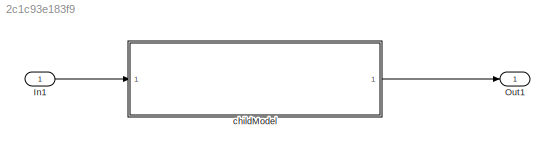
MODEL slx_2c1c93e183f9
KIND model
BLOCK [Inport] In1
  IconDisplay = Port number
BLOCK [Outport] Out1
  IconDisplay = Port number
BLOCK [ModelReference] childModel
  ModelNameDialog = nuwc_child_model
  ModelReferenceVersion = 1.307
  Ports = [1, 1]
  Variant = off
LINE In1:1 -> childModel:1
LINE childModel:1 -> Out1:1
